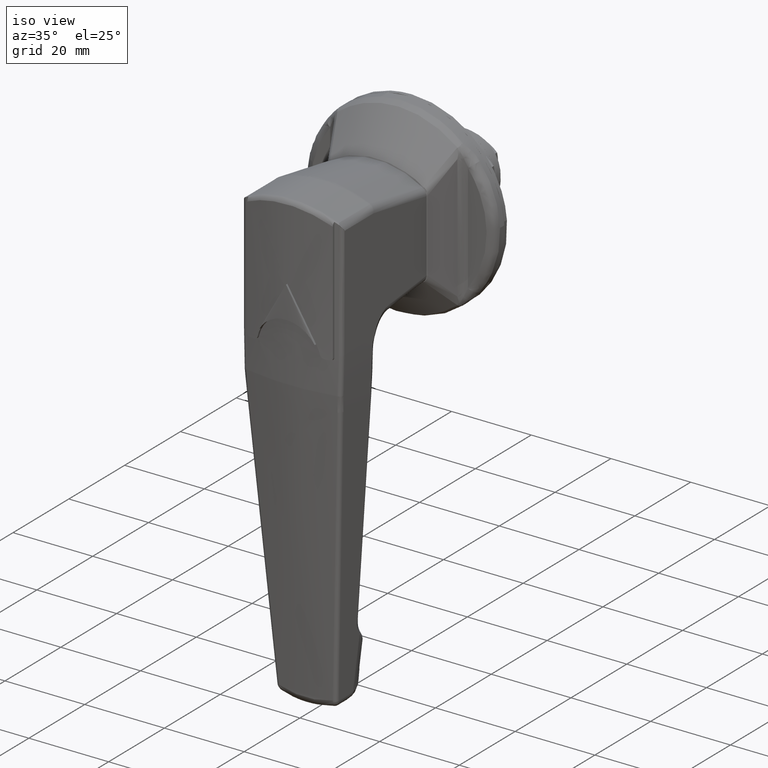
[diagram: clean part render]
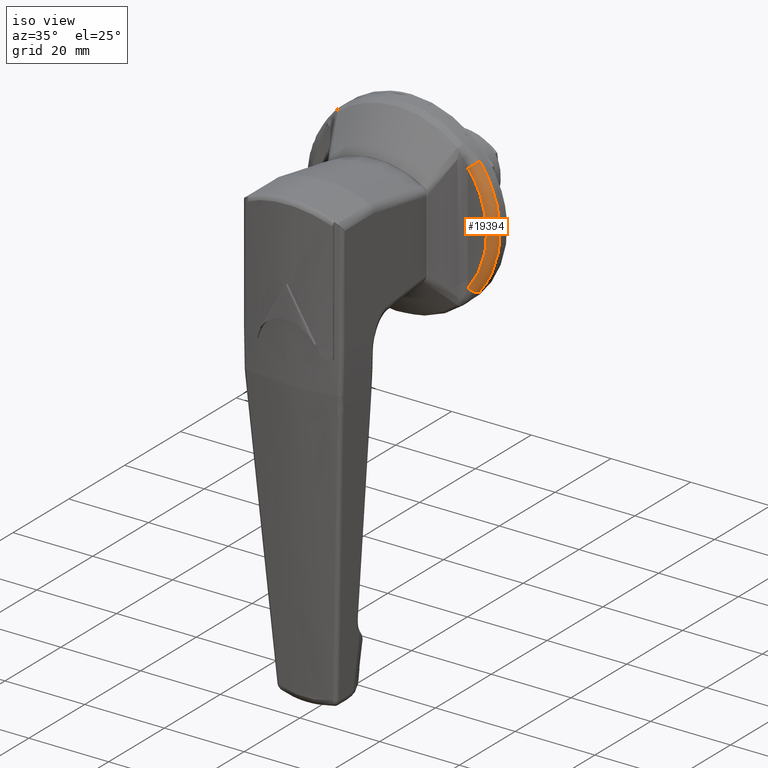
[diagram: same view with one face highlighted and labeled with its STEP entity id]
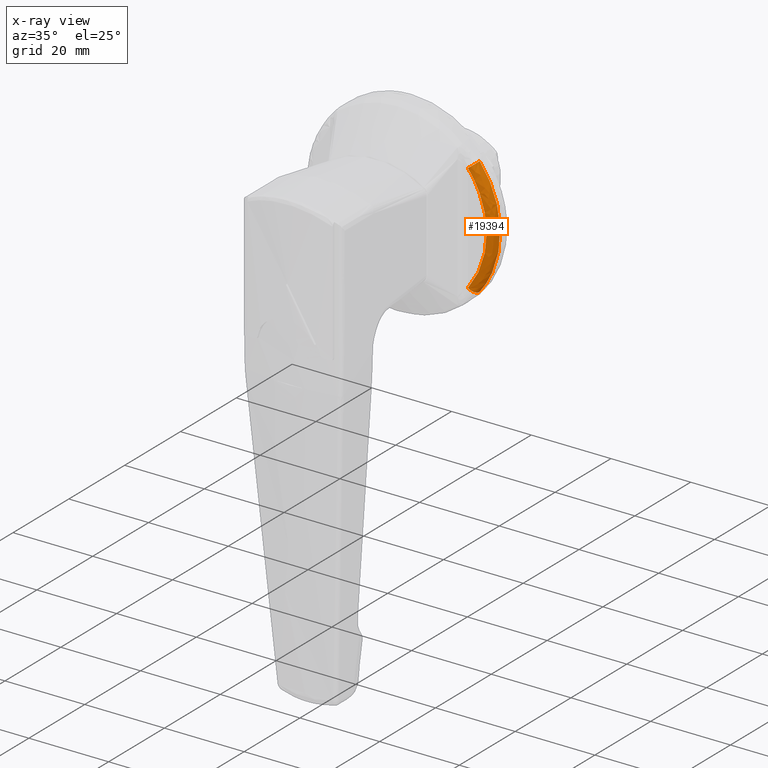
[diagram: x-ray of the same camera — body ghosted, the highlighted face saturated]
A machine part, iso view. The second image highlights one B-rep face of the part: STEP entity #19394.
The next image is the same camera in x-ray: the body ghosted, the highlighted face saturated — about 0% of this face is hidden behind the body in this view.
In plain terms, the highlighted face is a freeform B-spline surface patch.
Its self-contained STEP definition (entity closure, byte-faithful):
#16077=CARTESIAN_POINT('',(-2.500000000000000,-23.977157189527439,1.046868238454941));
#16078=VERTEX_POINT('',#16077);
#16084=CARTESIAN_POINT('',(-2.500000000000000,-18.877897728856649,-14.819749570719379));
#16085=VERTEX_POINT('',#16084);
#16086=CARTESIAN_POINT('',(-2.500000000000000,-23.977157189527436,1.046868238454941));
#16087=CARTESIAN_POINT('',(-2.500000000000000,-24.364748764611669,-7.830413333141636));
#16088=CARTESIAN_POINT('',(-2.500000000000000,-18.877897728856649,-14.819749570719379));
#16096=(BOUNDED_CURVE()B_SPLINE_CURVE(2,(#16086,#16087,#16088),.UNSPECIFIED.,.F.,.U.)B_SPLINE_CURVE_WITH_KNOTS((3,3),(0.468433957562856,1.0),.UNSPECIFIED.)CURVE()GEOMETRIC_REPRESENTATION_ITEM()RATIONAL_B_SPLINE_CURVE((0.893714847653518,0.886552681941061,1.0))REPRESENTATION_ITEM(''));
#16097=EDGE_CURVE('',#16078,#16085,#16096,.T.);
#16352=CARTESIAN_POINT('',(-2.500000000000000,-18.877897728162552,14.819749571603561));
#16353=VERTEX_POINT('',#16352);
#16365=CARTESIAN_POINT('',(-2.500000000000000,-18.877897728162552,14.819749571603561));
#16366=CARTESIAN_POINT('',(-2.500000000000000,-23.640711651250445,8.752716272295597));
#16367=CARTESIAN_POINT('',(-2.500000000000000,-23.977157189527436,1.046868238454941));
#16375=(BOUNDED_CURVE()B_SPLINE_CURVE(2,(#16365,#16366,#16367),.UNSPECIFIED.,.F.,.U.)B_SPLINE_CURVE_WITH_KNOTS((3,3),(0.0,0.468433957562856),.UNSPECIFIED.)CURVE()GEOMETRIC_REPRESENTATION_ITEM()RATIONAL_B_SPLINE_CURVE((1.0,0.900026390080166,0.893714847653518))REPRESENTATION_ITEM(''));
#16376=EDGE_CURVE('',#16353,#16078,#16375,.T.);
#19166=CARTESIAN_POINT('',(-4.500000000000000,-17.304739584785249,-13.584770439826100));
#19167=VERTEX_POINT('',#19166);
#19168=CARTESIAN_POINT('',(-2.500000000000000,-18.877897728856620,-14.819749570719370));
#19169=CARTESIAN_POINT('',(-4.500000000000002,-18.877897728856617,-14.819749570719377));
#19170=CARTESIAN_POINT('',(-4.500000000000001,-17.304739584785249,-13.584770439826100));
#19178=(BOUNDED_CURVE()B_SPLINE_CURVE(2,(#19168,#19169,#19170),.UNSPECIFIED.,.F.,.U.)CURVE()GEOMETRIC_REPRESENTATION_ITEM()QUASI_UNIFORM_CURVE()RATIONAL_B_SPLINE_CURVE((1.0,0.707106781186548,1.0))REPRESENTATION_ITEM(''));
#19179=EDGE_CURVE('',#16085,#19167,#19178,.T.);
#19344=CARTESIAN_POINT('',(-2.360551454261293,-17.935423397602111,-15.940105902369076));
#19345=CARTESIAN_POINT('',(-2.360551454261294,-32.102191423698947,0.000000410594329));
#19346=CARTESIAN_POINT('',(-2.360551454261294,-17.935422989846945,15.940106361165356));
#19347=CARTESIAN_POINT('',(-4.654672141033752,-18.055275860832264,-16.046624768090627));
#19348=CARTESIAN_POINT('',(-4.654672141033751,-32.316712521524309,0.000000413338104));
#19349=CARTESIAN_POINT('',(-4.654672141033752,-18.055275450352287,16.046625229952792));
#19350=CARTESIAN_POINT('',(-4.495184655368125,-16.340465611086461,-14.522587315644966));
#19351=CARTESIAN_POINT('',(-4.495184655368123,-29.247414090575610,0.000000374081079));
#19352=CARTESIAN_POINT('',(-4.495184655368123,-16.340465239592071,14.522587733641506));
#19360=(BOUNDED_SURFACE()B_SPLINE_SURFACE(2,2,((#19344,#19347,#19350),(#19345,#19348,#19351),(#19346,#19349,#19352)),.UNSPECIFIED.,.F.,.F.,.U.)B_SPLINE_SURFACE_WITH_KNOTS((3,3),(3,3),(0.0,36.487468679509973),(0.0,3.644741660180551),.UNSPECIFIED.)GEOMETRIC_REPRESENTATION_ITEM()RATIONAL_B_SPLINE_SURFACE(((0.842583616756745,0.554461893038331,0.847276907689011),(0.629798303939934,0.414438582581270,0.633306355378693),(0.842583624950479,0.554461898430215,0.847276915928385)))REPRESENTATION_ITEM('')SURFACE());
#19361=CARTESIAN_POINT('',(-4.500000000000000,-17.304739584149001,13.584770440636600));
#19362=VERTEX_POINT('',#19361);
#19363=CARTESIAN_POINT('',(-2.500000000000000,-18.877897728162530,14.819749571603550));
#19364=CARTESIAN_POINT('',(-4.500000000000002,-18.877897728162537,14.819749571603559));
#19365=CARTESIAN_POINT('',(-4.500000000000001,-17.304739584149001,13.584770440636600));
#19373=(BOUNDED_CURVE()B_SPLINE_CURVE(2,(#19363,#19364,#19365),.UNSPECIFIED.,.F.,.U.)CURVE()GEOMETRIC_REPRESENTATION_ITEM()QUASI_UNIFORM_CURVE()RATIONAL_B_SPLINE_CURVE((1.0,0.707106781186548,1.0))REPRESENTATION_ITEM(''));
#19374=EDGE_CURVE('',#16353,#19362,#19373,.T.);
#19375=ORIENTED_EDGE('',*,*,#19374,.T.);
#19376=CARTESIAN_POINT('',(-4.500000000000000,-17.304739584785249,-13.584770439826100));
#19377=CARTESIAN_POINT('',(-4.500000000000000,-27.969216042664154,6.549813E-010));
#19378=CARTESIAN_POINT('',(-4.500000000000000,-17.304739584149001,13.584770440636600));
#19386=(BOUNDED_CURVE()B_SPLINE_CURVE(2,(#19376,#19377,#19378),.UNSPECIFIED.,.F.,.U.)CURVE()GEOMETRIC_REPRESENTATION_ITEM()QUASI_UNIFORM_CURVE()RATIONAL_B_SPLINE_CURVE((1.0,0.786579072021227,1.0))REPRESENTATION_ITEM(''));
#19387=EDGE_CURVE('',#19167,#19362,#19386,.T.);
#19388=ORIENTED_EDGE('',*,*,#19387,.F.);
#19389=ORIENTED_EDGE('',*,*,#19179,.F.);
#19390=ORIENTED_EDGE('',*,*,#16097,.F.);
#19391=ORIENTED_EDGE('',*,*,#16376,.F.);
#19392=EDGE_LOOP('',(#19375,#19388,#19389,#19390,#19391));
#19393=FACE_OUTER_BOUND('',#19392,.T.);
#19394=ADVANCED_FACE('',(#19393),#19360,.T.);